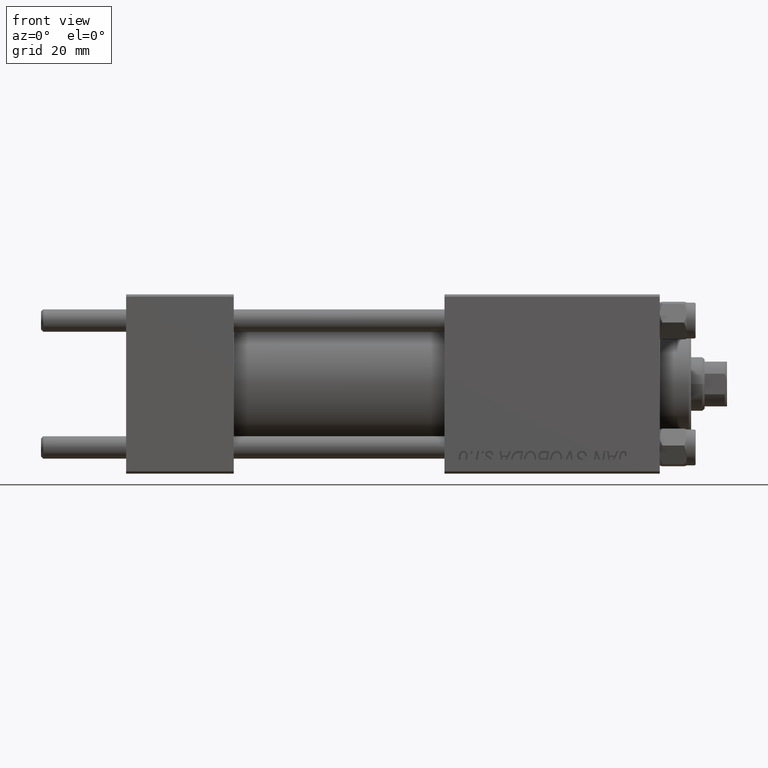
[diagram: clean part render]
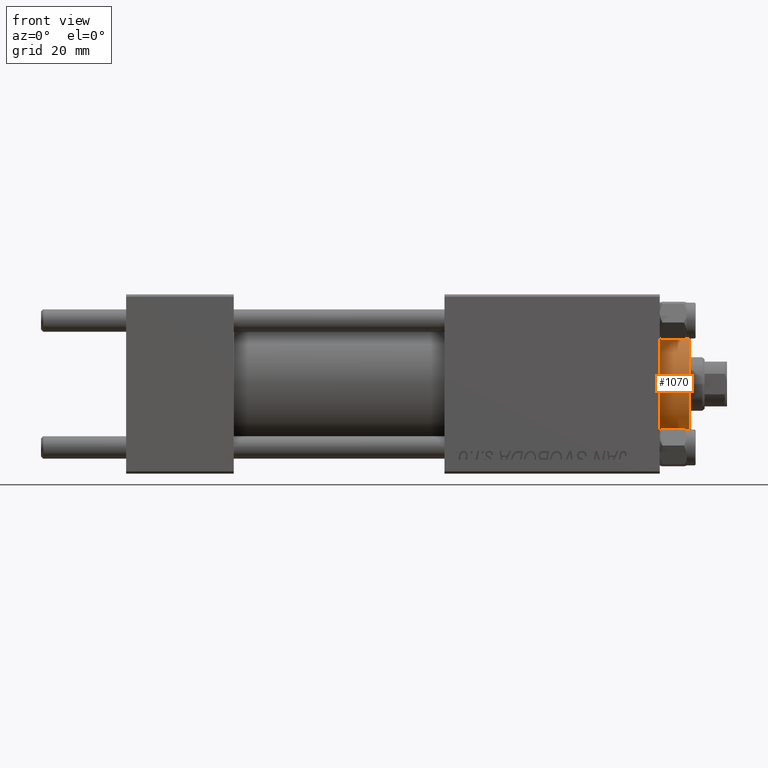
[diagram: same view with one face highlighted and labeled with its STEP entity id]
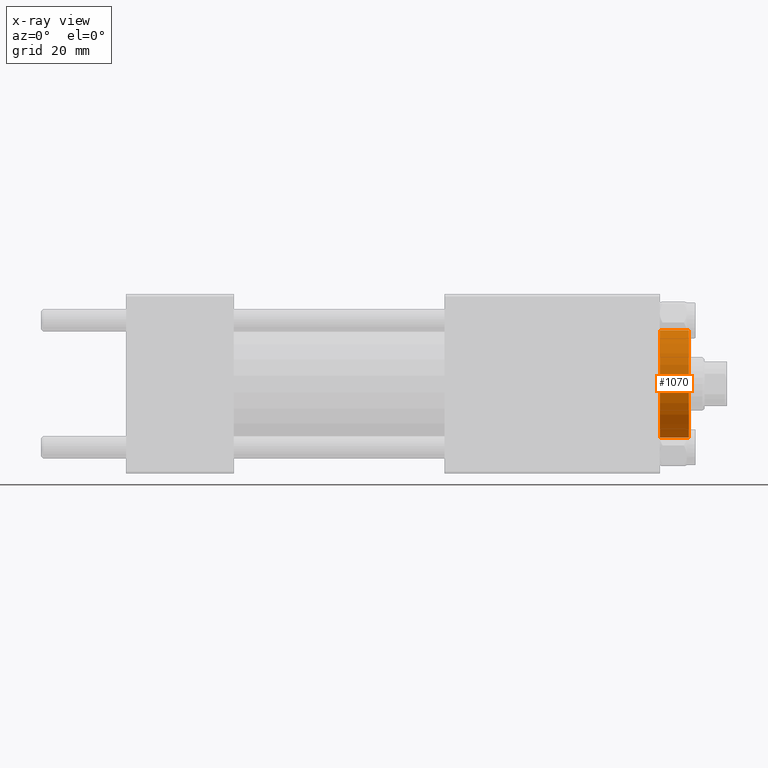
[diagram: x-ray of the same camera — body ghosted, the highlighted face saturated]
A machine part, front view. The second image highlights one B-rep face of the part: STEP entity #1070.
The next image is the same camera in x-ray: the body ghosted, the highlighted face saturated — about 0% of this face is hidden behind the body in this view.
In plain terms, the highlighted cylindrical surface (partial cylindrical patch) has radius 12 mm, axis along (-1, -0, 0).
Its self-contained STEP definition (entity closure, byte-faithful):
#334 = CARTESIAN_POINT ( 'NONE',  ( 0.000000000000000000, 0.000000000000000000, 35.19999999999999574 ) ) ;
#961 = ORIENTED_EDGE ( 'NONE', *, *, #988, .T. ) ;
#988 = EDGE_CURVE ( 'NONE', #5717, #6344, #20668, .T. ) ;
#1070 = ADVANCED_FACE ( 'NONE', ( #41595 ), #3206, .T. ) ;
#3052 = AXIS2_PLACEMENT_3D ( 'NONE', #6770, #44633, #48671 ) ;
#3206 = CYLINDRICAL_SURFACE ( 'NONE', #3052, 12.00000000000000178 ) ;
#3845 = EDGE_CURVE ( 'NONE', #40037, #43473, #42311, .T. ) ;
#3918 = CARTESIAN_POINT ( 'NONE',  ( 12.00000000000000178, 1.469576158976824144E-15, 35.70000000000000284 ) ) ;
#5717 = VERTEX_POINT ( 'NONE', #7452 ) ;
#6344 = VERTEX_POINT ( 'NONE', #46135 ) ;
#6770 = CARTESIAN_POINT ( 'NONE',  ( 0.000000000000000000, 0.000000000000000000, 35.70000000000000284 ) ) ;
#7452 = CARTESIAN_POINT ( 'NONE',  ( -12.00000000000000178, 0.000000000000000000, 35.19999999999999574 ) ) ;
#9634 = ORIENTED_EDGE ( 'NONE', *, *, #41497, .T. ) ;
#13839 = DIRECTION ( 'NONE',  ( 0.000000000000000000, 0.000000000000000000, 1.000000000000000000 ) ) ;
#14365 = ORIENTED_EDGE ( 'NONE', *, *, #46451, .T. ) ;
#15795 = DIRECTION ( 'NONE',  ( -0.000000000000000000, -0.000000000000000000, -1.000000000000000000 ) ) ;
#15929 = VECTOR ( 'NONE', #32284, 1000.000000000000000 ) ;
#19926 = EDGE_LOOP ( 'NONE', ( #46606, #9634, #961, #14365 ) ) ;
#20668 = LINE ( 'NONE', #36056, #15929 ) ;
#21109 = AXIS2_PLACEMENT_3D ( 'NONE', #334, #36173, #43505 ) ;
#27442 = CARTESIAN_POINT ( 'NONE',  ( 12.00000000000000178, 0.000000000000000000, 28.69999999999999929 ) ) ;
#29175 = CIRCLE ( 'NONE', #48524, 12.00000000000000178 ) ;
#29179 = CIRCLE ( 'NONE', #21109, 12.00000000000000178 ) ;
#29234 = DIRECTION ( 'NONE',  ( 1.000000000000000000, 0.000000000000000000, 0.000000000000000000 ) ) ;
#32284 = DIRECTION ( 'NONE',  ( -0.000000000000000000, -0.000000000000000000, -1.000000000000000000 ) ) ;
#34079 = CARTESIAN_POINT ( 'NONE',  ( 12.00000000000000178, 1.469576158976824144E-15, 35.19999999999999574 ) ) ;
#36056 = CARTESIAN_POINT ( 'NONE',  ( -12.00000000000000178, 0.000000000000000000, 35.70000000000000284 ) ) ;
#36173 = DIRECTION ( 'NONE',  ( 0.000000000000000000, 0.000000000000000000, -1.000000000000000000 ) ) ;
#37648 = VECTOR ( 'NONE', #15795, 1000.000000000000000 ) ;
#40037 = VERTEX_POINT ( 'NONE', #34079 ) ;
#41497 = EDGE_CURVE ( 'NONE', #40037, #5717, #29179, .T. ) ;
#41595 = FACE_OUTER_BOUND ( 'NONE', #19926, .T. ) ;
#42311 = LINE ( 'NONE', #3918, #37648 ) ;
#43473 = VERTEX_POINT ( 'NONE', #27442 ) ;
#43505 = DIRECTION ( 'NONE',  ( 1.000000000000000000, 0.000000000000000000, 0.000000000000000000 ) ) ;
#44633 = DIRECTION ( 'NONE',  ( -0.000000000000000000, -0.000000000000000000, -1.000000000000000000 ) ) ;
#46135 = CARTESIAN_POINT ( 'NONE',  ( -12.00000000000000178, 0.000000000000000000, 28.69999999999999929 ) ) ;
#46451 = EDGE_CURVE ( 'NONE', #6344, #43473, #29175, .T. ) ;
#46606 = ORIENTED_EDGE ( 'NONE', *, *, #3845, .F. ) ;
#48406 = CARTESIAN_POINT ( 'NONE',  ( 0.000000000000000000, 0.000000000000000000, 28.69999999999999929 ) ) ;
#48524 = AXIS2_PLACEMENT_3D ( 'NONE', #48406, #13839, #29234 ) ;
#48671 = DIRECTION ( 'NONE',  ( -1.000000000000000000, 0.000000000000000000, 0.000000000000000000 ) ) ;